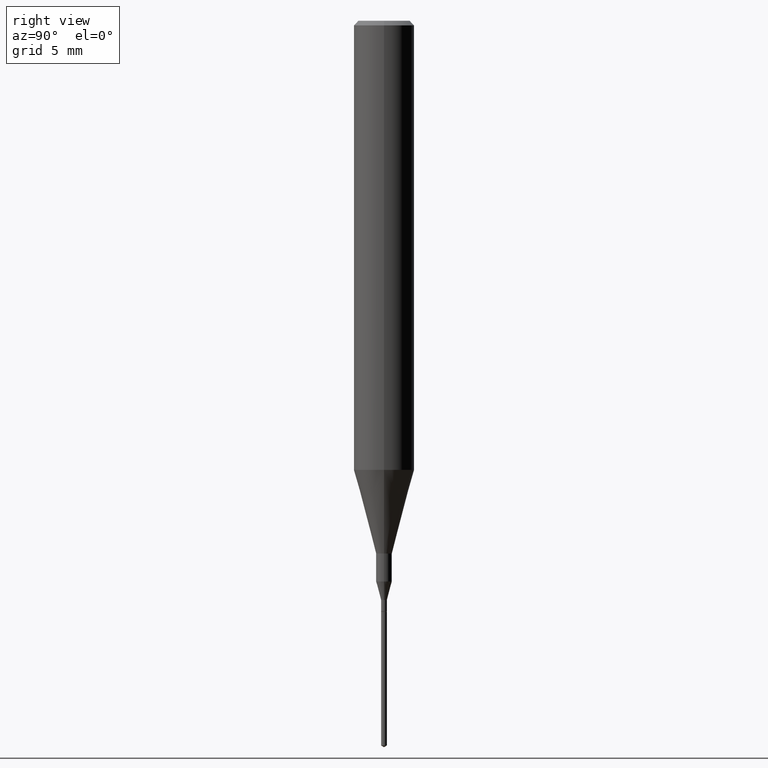
[diagram: clean part render]
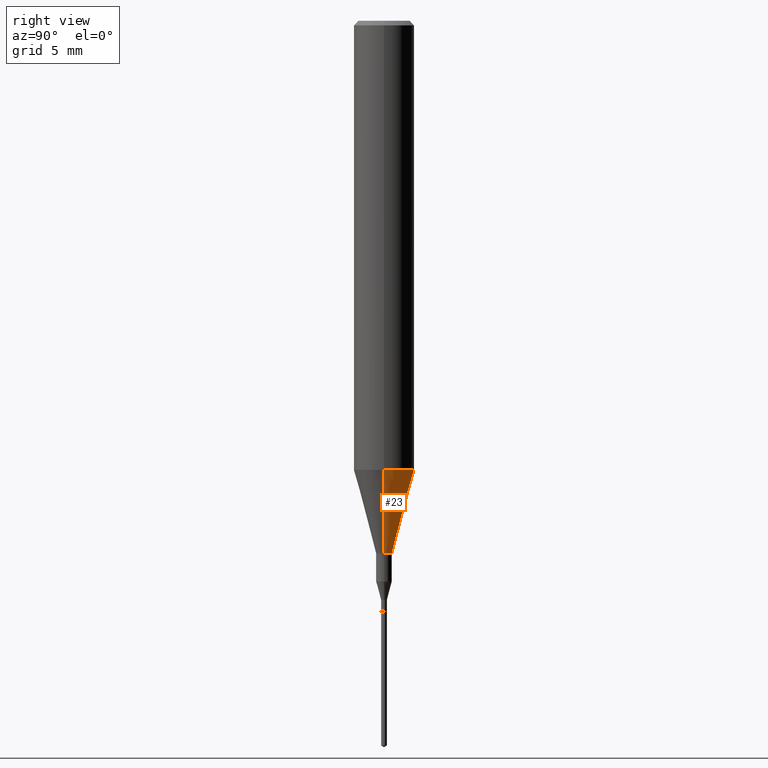
[diagram: same view with one face highlighted and labeled with its STEP entity id]
A machine part, right view. The second image highlights one B-rep face of the part: STEP entity #23.
In plain terms, the highlighted conical surface has half-angle 15 deg.
Its self-contained STEP definition (entity closure, byte-faithful):
#21 = VERTEX_POINT ( 'NONE', #412 ) ;
#23 = ADVANCED_FACE ( 'NONE', ( #369 ), #396, .T. ) ;
#29 = VECTOR ( 'NONE', #228, 39.37007874015748143 ) ;
#39 = CIRCLE ( 'NONE', #418, 0.06250000000000011102 ) ;
#51 = CARTESIAN_POINT ( 'NONE',  ( -0.06250000000000011102, -2.793884921928740709E-15, -0.9273926501499395458 ) ) ;
#73 = EDGE_CURVE ( 'NONE', #192, #222, #304, .T. ) ;
#89 = DIRECTION ( 'NONE',  ( 1.000000000000000000, -6.982962677686259611E-15, 0.000000000000000000 ) ) ;
#90 = CARTESIAN_POINT ( 'NONE',  ( 0.06250000000000011102, -3.674409299134196572E-15, -0.9273926501499395458 ) ) ;
#107 = DIRECTION ( 'NONE',  ( -2.445468806185136597E-29, 3.491481338843145583E-15, 1.000000000000000000 ) ) ;
#123 = EDGE_CURVE ( 'NONE', #222, #21, #276, .T. ) ;
#125 = ORIENTED_EDGE ( 'NONE', *, *, #289, .F. ) ;
#135 = CARTESIAN_POINT ( 'NONE',  ( 0.01624999999999999709, -3.954102616239861778E-15, -1.100000000000000089 ) ) ;
#189 = DIRECTION ( 'NONE',  ( -2.445468806185136597E-29, 3.491481338843145583E-15, 1.000000000000000000 ) ) ;
#192 = VERTEX_POINT ( 'NONE', #135 ) ;
#222 = VERTEX_POINT ( 'NONE', #557 ) ;
#224 = CARTESIAN_POINT ( 'NONE',  ( 0.06250000000000011102, -3.674409299134196572E-15, -0.9273926501499395458 ) ) ;
#226 = DIRECTION ( 'NONE',  ( -2.445468806185136597E-29, 3.491481338843145583E-15, 1.000000000000000000 ) ) ;
#228 = DIRECTION ( 'NONE',  ( -0.2588190451025214611, 5.211531920934550253E-15, 0.9659258262890679791 ) ) ;
#248 = EDGE_LOOP ( 'NONE', ( #351, #353, #484, #125 ) ) ;
#262 = VERTEX_POINT ( 'NONE', #224 ) ;
#272 = DIRECTION ( 'NONE',  ( 0.2588190451025214611, 1.565188264969620982E-15, 0.9659258262890679791 ) ) ;
#276 = LINE ( 'NONE', #51, #29 ) ;
#289 = EDGE_CURVE ( 'NONE', #192, #262, #503, .T. ) ;
#296 = CARTESIAN_POINT ( 'NONE',  ( 2.267909797027042920E-29, -3.237974131778804114E-15, -0.9273926501499395458 ) ) ;
#299 = AXIS2_PLACEMENT_3D ( 'NONE', #446, #189, #506 ) ;
#304 = CIRCLE ( 'NONE', #377, 0.01624999999999999709 ) ;
#336 = EDGE_CURVE ( 'NONE', #262, #21, #39, .T. ) ;
#351 = ORIENTED_EDGE ( 'NONE', *, *, #73, .T. ) ;
#353 = ORIENTED_EDGE ( 'NONE', *, *, #123, .T. ) ;
#369 = FACE_OUTER_BOUND ( 'NONE', #248, .T. ) ;
#377 = AXIS2_PLACEMENT_3D ( 'NONE', #555, #226, #89 ) ;
#396 = CONICAL_SURFACE ( 'NONE', #299, 0.06250000000000011102, 0.2617993877991501850 ) ;
#412 = CARTESIAN_POINT ( 'NONE',  ( -0.06250000000000011102, -2.793884921928740709E-15, -0.9273926501499395458 ) ) ;
#418 = AXIS2_PLACEMENT_3D ( 'NONE', #296, #107, #575 ) ;
#446 = CARTESIAN_POINT ( 'NONE',  ( 2.267909797027042920E-29, -3.237974131778804114E-15, -0.9273926501499395458 ) ) ;
#484 = ORIENTED_EDGE ( 'NONE', *, *, #336, .F. ) ;
#503 = LINE ( 'NONE', #90, #561 ) ;
#506 = DIRECTION ( 'NONE',  ( 1.000000000000000000, -6.982962677686265922E-15, 0.000000000000000000 ) ) ;
#555 = CARTESIAN_POINT ( 'NONE',  ( 2.690015686803650369E-29, -3.840629472727460101E-15, -1.100000000000000089 ) ) ;
#557 = CARTESIAN_POINT ( 'NONE',  ( -0.01624999999999999709, -3.825976655460928775E-15, -1.100000000000000089 ) ) ;
#561 = VECTOR ( 'NONE', #272, 39.37007874015748143 ) ;
#575 = DIRECTION ( 'NONE',  ( 1.000000000000000000, -6.982962677686265922E-15, 0.000000000000000000 ) ) ;